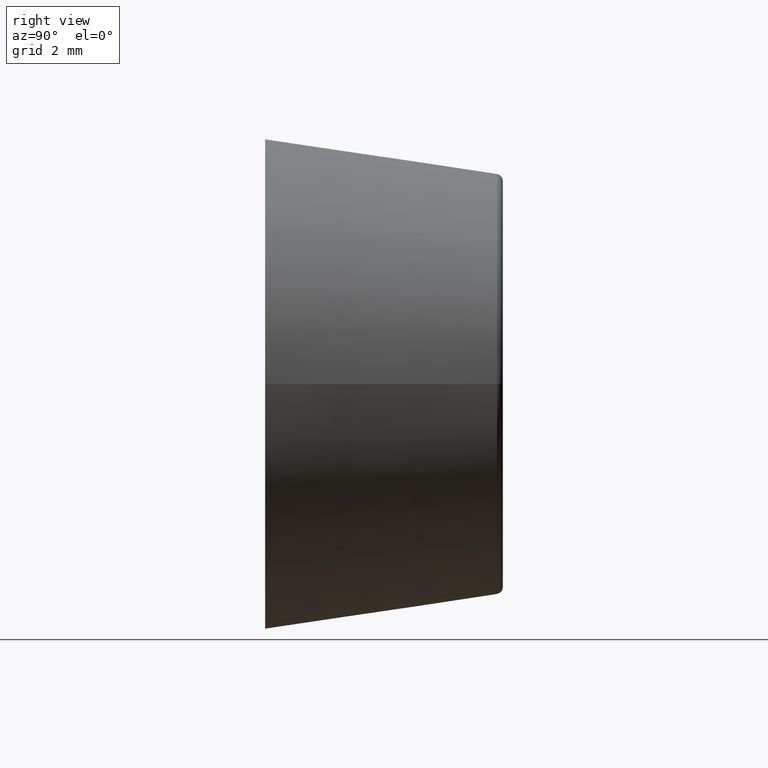
[diagram: clean part render]
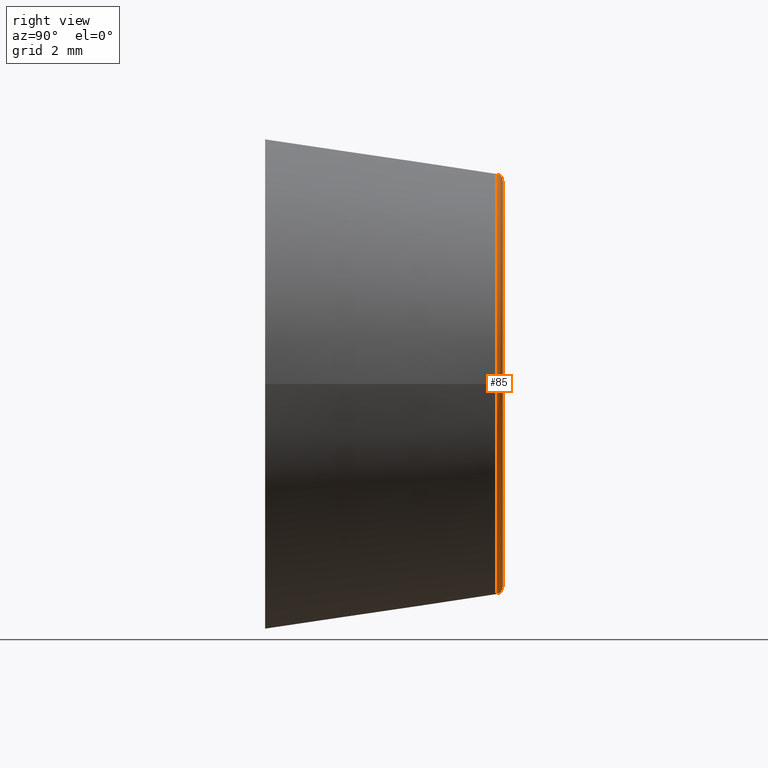
[diagram: same view with one face highlighted and labeled with its STEP entity id]
A machine part, right view. The second image highlights one B-rep face of the part: STEP entity #85.
In plain terms, the highlighted toroidal blend (fillet) surface has major radius 7.2841 mm and minor (blend) radius 0.25 mm.
Its self-contained STEP definition (entity closure, byte-faithful):
#21=FACE_BOUND('',#36,.T.);
#28=FACE_OUTER_BOUND('',#35,.T.);
#35=EDGE_LOOP('',(#70));
#36=EDGE_LOOP('',(#71));
#49=CIRCLE('',#95,7.28407587827295);
#50=CIRCLE('',#96,7.53141566211416);
#56=VERTEX_POINT('',#140);
#57=VERTEX_POINT('',#142);
#63=EDGE_CURVE('',#56,#56,#49,.T.);
#64=EDGE_CURVE('',#57,#57,#50,.T.);
#70=ORIENTED_EDGE('',*,*,#63,.T.);
#71=ORIENTED_EDGE('',*,*,#64,.T.);
#84=TOROIDAL_SURFACE('',#94,7.28407587827295,0.25);
#85=ADVANCED_FACE('',(#28,#21),#84,.T.);
#94=AXIS2_PLACEMENT_3D('',#139,#110,#111);
#95=AXIS2_PLACEMENT_3D('',#141,#112,#113);
#96=AXIS2_PLACEMENT_3D('',#143,#114,#115);
#110=DIRECTION('center_axis',(0.,-1.,0.));
#111=DIRECTION('ref_axis',(0.,0.,-1.));
#112=DIRECTION('center_axis',(0.,-1.,0.));
#113=DIRECTION('ref_axis',(-1.,0.,1.22464679914735E-16));
#114=DIRECTION('center_axis',(0.,1.,0.));
#115=DIRECTION('ref_axis',(-1.,0.,1.22464679914735E-16));
#139=CARTESIAN_POINT('Origin',(0.,8.25,0.));
#140=CARTESIAN_POINT('',(7.28407587827295,8.5,0.));
#141=CARTESIAN_POINT('Origin',(0.,8.5,0.));
#142=CARTESIAN_POINT('',(7.53141566211416,8.28637349762371,-1.84466481673127E-15));
#143=CARTESIAN_POINT('Origin',(0.,8.28637349762371,0.));